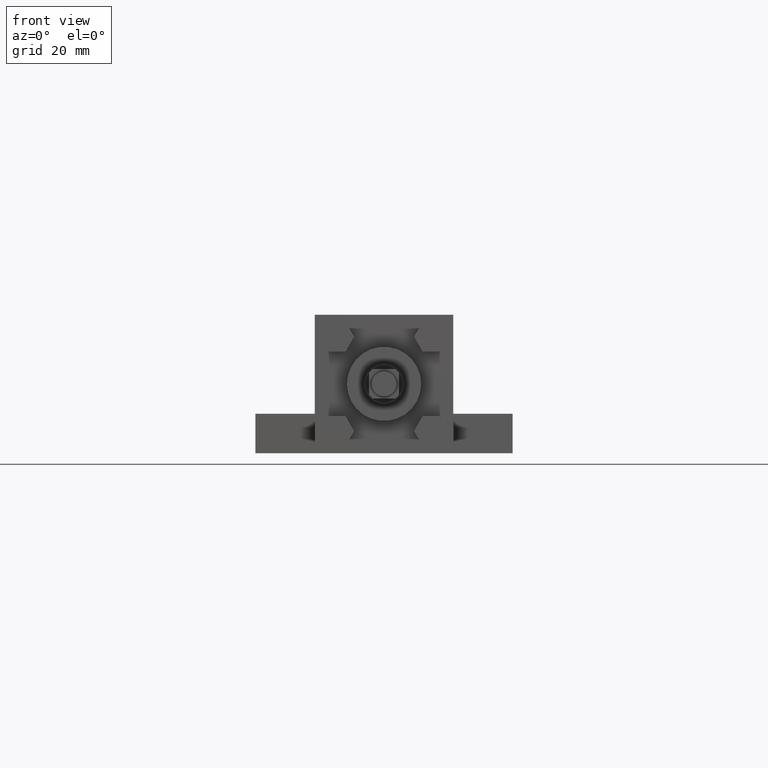
[diagram: clean part render]
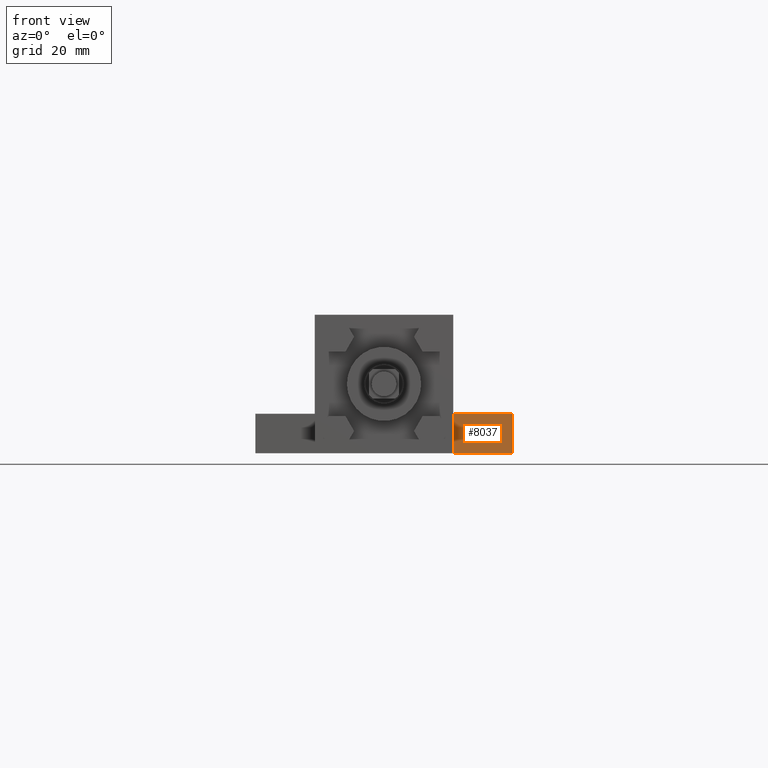
[diagram: same view with one face highlighted and labeled with its STEP entity id]
A machine part, front view. The second image highlights one B-rep face of the part: STEP entity #8037.
In plain terms, the highlighted planar face has unit normal (0, 1, 0).
Its self-contained STEP definition (entity closure, byte-faithful):
#1693=VERTEX_POINT('',#1695);
#1695=CARTESIAN_POINT('',(4.127500000E+001,2.540000000E+001,-9.525000000E+000));
#1712=VERTEX_POINT('',#1713);
#1713=CARTESIAN_POINT('',(2.222500000E+001,2.540000000E+001,-9.525000000E+000));
#1714=EDGE_CURVE('',#1712,#1693,#1715,.T.);
#1715=LINE('',#1716,#1717);
#1716=CARTESIAN_POINT('',(2.222500000E+001,2.540000000E+001,-9.525000000E+000));
#1717=VECTOR('',#1718,1.0E+000);
#1718=DIRECTION('',(1.0E+000,0.0E+000,0.0E+000));
#1724=FACE_OUTER_BOUND('',#1725,.T.);
#1725=EDGE_LOOP('',(#1726,#1727,#1728,#1729));
#1726=ORIENTED_EDGE('',*,*,#1730,.T.);
#1727=ORIENTED_EDGE('',*,*,#1739,.F.);
#1728=ORIENTED_EDGE('',*,*,#1714,.F.);
#1729=ORIENTED_EDGE('',*,*,#1744,.T.);
#1730=EDGE_CURVE('',#1735,#1736,#1731,.T.);
#1731=LINE('',#1732,#1733);
#1732=CARTESIAN_POINT('',(2.222500000E+001,2.540000000E+001,-2.222500000E+001));
#1733=VECTOR('',#1734,1.0E+000);
#1734=DIRECTION('',(1.0E+000,0.0E+000,0.0E+000));
#1735=VERTEX_POINT('',#1737);
#1736=VERTEX_POINT('',#1738);
#1737=CARTESIAN_POINT('',(2.222500000E+001,2.540000000E+001,-2.222500000E+001));
#1738=CARTESIAN_POINT('',(4.127500000E+001,2.540000000E+001,-2.222500000E+001));
#1739=EDGE_CURVE('',#1693,#1736,#1740,.T.);
#1740=LINE('',#1741,#1742);
#1741=CARTESIAN_POINT('',(4.127500000E+001,2.540000000E+001,-9.525000000E+000));
#1742=VECTOR('',#1743,1.0E+000);
#1743=DIRECTION('',(0.0E+000,0.0E+000,-1.0E+000));
#1744=EDGE_CURVE('',#1712,#1735,#1745,.T.);
#1745=LINE('',#1746,#1747);
#1746=CARTESIAN_POINT('',(2.222500000E+001,2.540000000E+001,-9.525000000E+000));
#1747=VECTOR('',#1748,1.0E+000);
#1748=DIRECTION('',(0.0E+000,0.0E+000,-1.0E+000));
#1749=PLANE('',#1750);
#1750=AXIS2_PLACEMENT_3D('',#1751,#1752,#1753);
#1751=CARTESIAN_POINT('',(2.222500000E+001,2.540000000E+001,-9.525000000E+000));
#1752=DIRECTION('',(0.0E+000,1.0E+000,0.0E+000));
#1753=DIRECTION('',(0.0E+000,0.0E+000,1.0E+000));
#8037=ADVANCED_FACE('',(#1724),#1749,.F.);